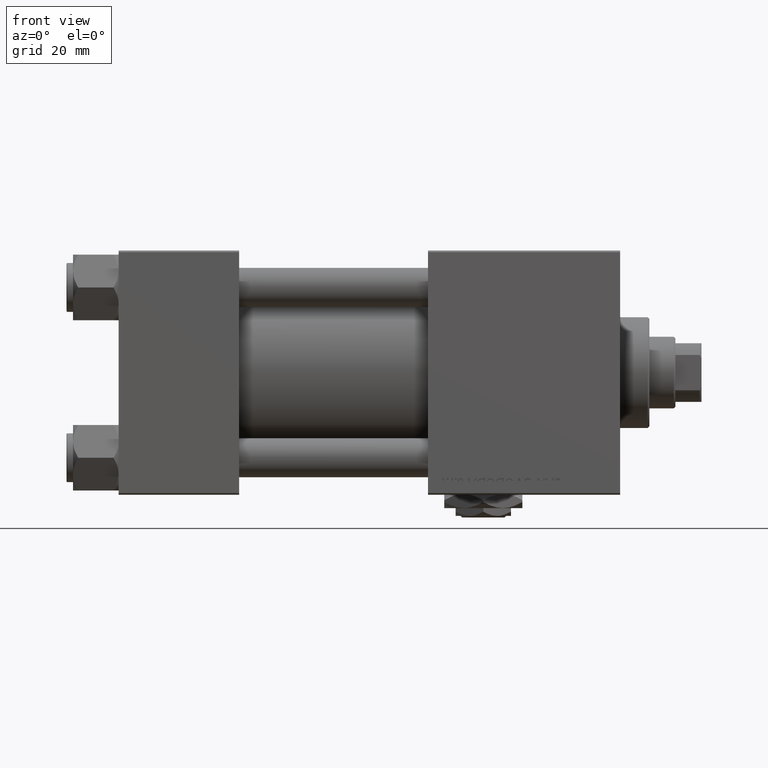
[diagram: clean part render]
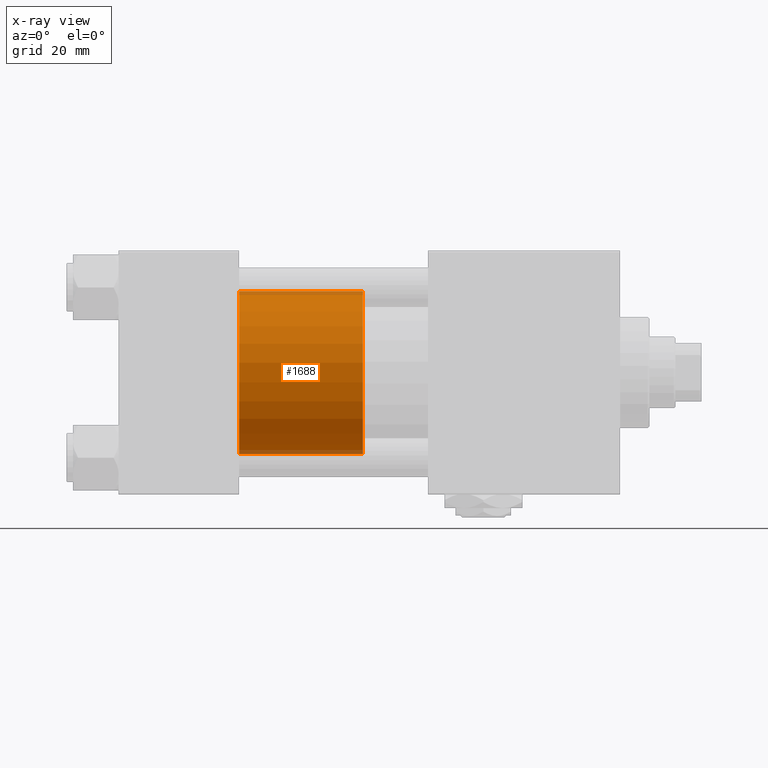
[diagram: x-ray — body ghosted, one internal face saturated and labeled with its STEP entity id]
A machine part, front view, then the same camera in x-ray: the body is ghosted and one INTERNAL B-rep face — a face not visible from any outside direction — is saturated and labeled: STEP entity #1688.
In plain terms, the highlighted cylindrical surface (partial cylindrical patch) has radius 25 mm, axis along (-1, 0, 0).
Its self-contained STEP definition (entity closure, byte-faithful):
#995 = DIRECTION ( 'NONE',  ( -0.000000000000000000, -0.000000000000000000, -1.000000000000000000 ) ) ;
#1688 = ADVANCED_FACE ( 'NONE', ( #33252 ), #9128, .T. ) ;
#2578 = CIRCLE ( 'NONE', #25224, 25.00000000000000000 ) ;
#5027 = DIRECTION ( 'NONE',  ( 0.000000000000000000, 0.000000000000000000, 1.000000000000000000 ) ) ;
#5028 = AXIS2_PLACEMENT_3D ( 'NONE', #13822, #995, #41639 ) ;
#7866 = CARTESIAN_POINT ( 'NONE',  ( 25.00000000000000000, 3.061616997868383043E-15, 38.00000000000000000 ) ) ;
#9128 = CYLINDRICAL_SURFACE ( 'NONE', #5028, 25.00000000000000000 ) ;
#10124 = DIRECTION ( 'NONE',  ( -0.000000000000000000, -0.000000000000000000, -1.000000000000000000 ) ) ;
#12356 = ORIENTED_EDGE ( 'NONE', *, *, #13715, .F. ) ;
#13715 = EDGE_CURVE ( 'NONE', #23785, #48185, #32174, .T. ) ;
#13822 = CARTESIAN_POINT ( 'NONE',  ( 0.000000000000000000, 0.000000000000000000, 38.00000000000000000 ) ) ;
#14061 = LINE ( 'NONE', #46070, #33860 ) ;
#14427 = EDGE_LOOP ( 'NONE', ( #15476, #19970, #37138, #12356 ) ) ;
#15476 = ORIENTED_EDGE ( 'NONE', *, *, #37272, .F. ) ;
#16977 = EDGE_CURVE ( 'NONE', #48434, #25449, #14061, .T. ) ;
#19970 = ORIENTED_EDGE ( 'NONE', *, *, #16977, .T. ) ;
#21053 = DIRECTION ( 'NONE',  ( 1.000000000000000000, 0.000000000000000000, 0.000000000000000000 ) ) ;
#23785 = VERTEX_POINT ( 'NONE', #28314 ) ;
#25224 = AXIS2_PLACEMENT_3D ( 'NONE', #50773, #42371, #38701 ) ;
#25449 = VERTEX_POINT ( 'NONE', #29681 ) ;
#26450 = CIRCLE ( 'NONE', #46591, 25.00000000000000000 ) ;
#27724 = CARTESIAN_POINT ( 'NONE',  ( -25.00000000000000000, 0.000000000000000000, 38.00000000000000000 ) ) ;
#28314 = CARTESIAN_POINT ( 'NONE',  ( -25.00000000000000000, 0.000000000000000000, 38.00000000000000000 ) ) ;
#29681 = CARTESIAN_POINT ( 'NONE',  ( 25.00000000000000000, 3.061616997868383043E-15, 0.000000000000000000 ) ) ;
#32174 = LINE ( 'NONE', #27724, #41314 ) ;
#32692 = DIRECTION ( 'NONE',  ( -0.000000000000000000, -0.000000000000000000, -1.000000000000000000 ) ) ;
#32852 = CARTESIAN_POINT ( 'NONE',  ( 0.000000000000000000, 0.000000000000000000, 0.000000000000000000 ) ) ;
#33252 = FACE_OUTER_BOUND ( 'NONE', #14427, .T. ) ;
#33860 = VECTOR ( 'NONE', #10124, 1000.000000000000000 ) ;
#36766 = CARTESIAN_POINT ( 'NONE',  ( -25.00000000000000000, 0.000000000000000000, 0.000000000000000000 ) ) ;
#37138 = ORIENTED_EDGE ( 'NONE', *, *, #44233, .T. ) ;
#37272 = EDGE_CURVE ( 'NONE', #48434, #23785, #2578, .T. ) ;
#38701 = DIRECTION ( 'NONE',  ( 1.000000000000000000, 0.000000000000000000, 0.000000000000000000 ) ) ;
#41314 = VECTOR ( 'NONE', #32692, 1000.000000000000000 ) ;
#41639 = DIRECTION ( 'NONE',  ( -1.000000000000000000, 0.000000000000000000, 0.000000000000000000 ) ) ;
#42371 = DIRECTION ( 'NONE',  ( 0.000000000000000000, 0.000000000000000000, 1.000000000000000000 ) ) ;
#44233 = EDGE_CURVE ( 'NONE', #25449, #48185, #26450, .T. ) ;
#46070 = CARTESIAN_POINT ( 'NONE',  ( 25.00000000000000000, 3.061616997868383043E-15, 38.00000000000000000 ) ) ;
#46591 = AXIS2_PLACEMENT_3D ( 'NONE', #32852, #5027, #21053 ) ;
#48185 = VERTEX_POINT ( 'NONE', #36766 ) ;
#48434 = VERTEX_POINT ( 'NONE', #7866 ) ;
#50773 = CARTESIAN_POINT ( 'NONE',  ( 0.000000000000000000, 0.000000000000000000, 38.00000000000000000 ) ) ;